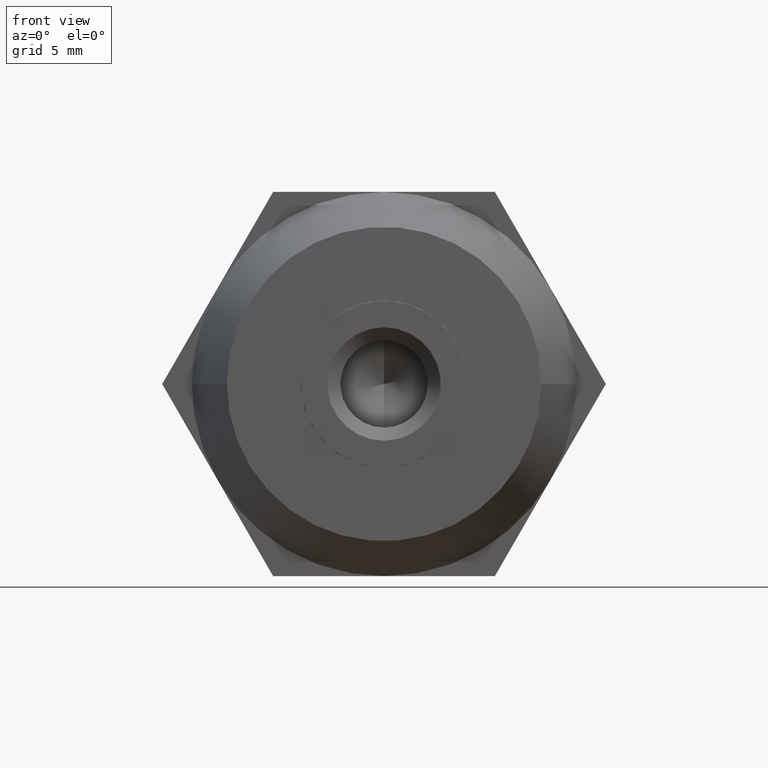
[diagram: clean part render]
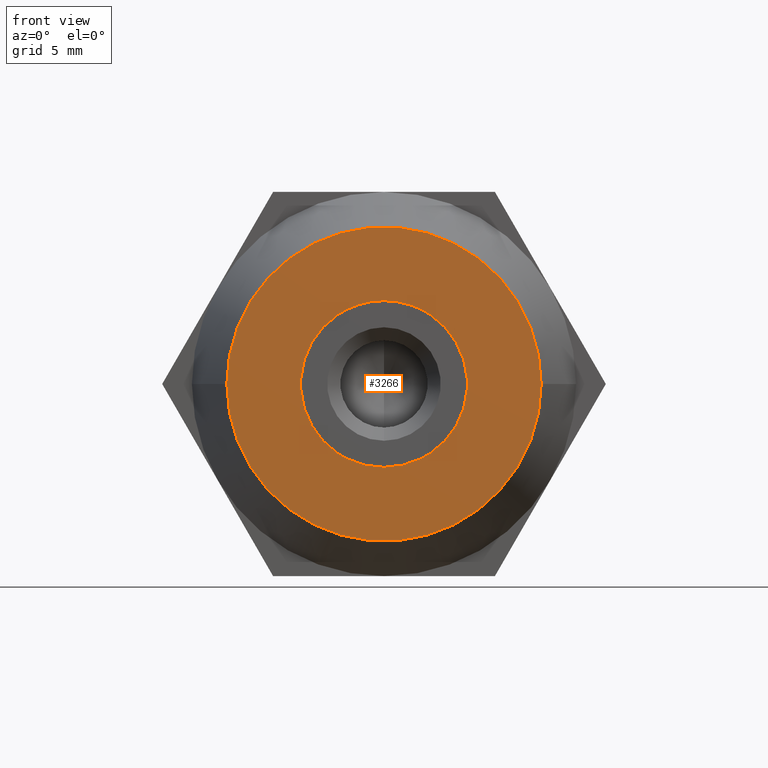
[diagram: same view with one face highlighted and labeled with its STEP entity id]
A machine part, front view. The second image highlights one B-rep face of the part: STEP entity #3266.
In plain terms, the highlighted planar face has unit normal (0, -1, 0).
Its self-contained STEP definition (entity closure, byte-faithful):
#18 = DIRECTION ( 'NONE',  ( 1.261786539621752000E-015, 1.545242846954995000E-031, 1.000000000000000000 ) ) ;
#135 = DIRECTION ( 'NONE',  ( -1.224646799147352000E-016, 1.000000000000000000, -0.0000000000000000000 ) ) ;
#229 = DIRECTION ( 'NONE',  ( -1.224646799147352000E-016, 1.000000000000000000, -0.0000000000000000000 ) ) ;
#272 = ORIENTED_EDGE ( 'NONE', *, *, #2318, .T. ) ;
#285 = DIRECTION ( 'NONE',  ( -0.8660254037844387100, -1.060575238724905700E-016, 0.4999999999999998900 ) ) ;
#337 = CARTESIAN_POINT ( 'NONE',  ( 4.762500000000000200, -12.50000000000000000, 0.3087879531335140400 ) ) ;
#352 = CARTESIAN_POINT ( 'NONE',  ( -4.762500000000000200, -12.50000000000000000, -5.346820461647119800E-015 ) ) ;
#397 = CARTESIAN_POINT ( 'NONE',  ( -4.762500000000000200, -12.50000000000000000, 0.3087879531329060200 ) ) ;
#401 = CIRCLE ( 'NONE', #3774, 4.772500000000000000 ) ;
#413 = DIRECTION ( 'NONE',  ( -1.000000000000000000, -1.927470528863119000E-016, 0.0000000000000000000 ) ) ;
#424 = VERTEX_POINT ( 'NONE', #1768 ) ;
#449 = LINE ( 'NONE', #3721, #2240 ) ;
#465 = ORIENTED_EDGE ( 'NONE', *, *, #550, .T. ) ;
#503 = DIRECTION ( 'NONE',  ( 1.000000000000000000, 0.0000000000000000000, 7.105427357601001900E-015 ) ) ;
#543 = DIRECTION ( 'NONE',  ( -1.224646799147352000E-016, 1.000000000000000000, -0.0000000000000000000 ) ) ;
#550 = EDGE_CURVE ( 'NONE', #2875, #659, #2256, .T. ) ;
#556 = VERTEX_POINT ( 'NONE', #337 ) ;
#571 = CARTESIAN_POINT ( 'NONE',  ( -8.999999999999996400, -12.50000000000000200, 0.0000000000000000000 ) ) ;
#582 = CIRCLE ( 'NONE', #678, 4.772500000000000000 ) ;
#603 = EDGE_LOOP ( 'NONE', ( #2239, #1089 ) ) ;
#659 = VERTEX_POINT ( 'NONE', #1272 ) ;
#662 = DIRECTION ( 'NONE',  ( -1.224646799147352000E-016, 1.000000000000000000, -0.0000000000000000000 ) ) ;
#678 = AXIS2_PLACEMENT_3D ( 'NONE', #3274, #543, #1756 ) ;
#718 = CARTESIAN_POINT ( 'NONE',  ( 2.022226441606597600E-030, -12.50000000000000000, 4.772500000000000000 ) ) ;
#767 = ORIENTED_EDGE ( 'NONE', *, *, #2560, .T. ) ;
#807 = LINE ( 'NONE', #2177, #3607 ) ;
#835 = CARTESIAN_POINT ( 'NONE',  ( -4.368750000000000400, -12.50000000000000000, -8.021560302553369900 ) ) ;
#841 = ORIENTED_EDGE ( 'NONE', *, *, #3730, .T. ) ;
#855 = AXIS2_PLACEMENT_3D ( 'NONE', #2644, #2973, #2782 ) ;
#886 = CARTESIAN_POINT ( 'NONE',  ( -9.131249999999999600, -12.50000000000000000, -0.2273316684934490200 ) ) ;
#906 = FACE_OUTER_BOUND ( 'NONE', #603, .T. ) ;
#969 = DIRECTION ( 'NONE',  ( 0.8660254037844387100, 1.060575238724905700E-016, -0.4999999999999998900 ) ) ;
#992 = VECTOR ( 'NONE', #2966, 1000.000000000000000 ) ;
#1005 = LINE ( 'NONE', #352, #1520 ) ;
#1048 = DIRECTION ( 'NONE',  ( 1.000000000000000000, 0.0000000000000000000, -2.664535259100375700E-015 ) ) ;
#1089 = ORIENTED_EDGE ( 'NONE', *, *, #3745, .F. ) ;
#1098 = LINE ( 'NONE', #3466, #2245 ) ;
#1114 = ORIENTED_EDGE ( 'NONE', *, *, #3353, .T. ) ;
#1125 = AXIS2_PLACEMENT_3D ( 'NONE', #1714, #229, #503 ) ;
#1272 = CARTESIAN_POINT ( 'NONE',  ( -2.648668211795669700, -12.50000000000000000, 3.970052008957005300 ) ) ;
#1329 = CIRCLE ( 'NONE', #1924, 4.772500000000000000 ) ;
#1353 = DIRECTION ( 'NONE',  ( 1.224646799147352000E-016, -1.000000000000000000, 0.0000000000000000000 ) ) ;
#1380 = PLANE ( 'NONE',  #1977 ) ;
#1413 = DIRECTION ( 'NONE',  ( 1.000000000000000000, 1.224646799147352000E-016, 0.0000000000000000000 ) ) ;
#1440 = EDGE_CURVE ( 'NONE', #1962, #2875, #1005, .T. ) ;
#1462 = CARTESIAN_POINT ( 'NONE',  ( 5.844626848930769500E-016, -12.50000000000000000, 0.0000000000000000000 ) ) ;
#1507 = AXIS2_PLACEMENT_3D ( 'NONE', #1956, #135, #1048 ) ;
#1520 = VECTOR ( 'NONE', #18, 1000.000000000000000 ) ;
#1637 = VERTEX_POINT ( 'NONE', #2961 ) ;
#1714 = CARTESIAN_POINT ( 'NONE',  ( 5.844626848930769500E-016, -12.50000000000000000, 0.0000000000000000000 ) ) ;
#1739 = AXIS2_PLACEMENT_3D ( 'NONE', #3484, #2855, #413 ) ;
#1756 = DIRECTION ( 'NONE',  ( 1.000000000000000000, 0.0000000000000000000, -1.776356839400250500E-015 ) ) ;
#1768 = CARTESIAN_POINT ( 'NONE',  ( -2.648668211795784700, -12.50000000000000000, -3.970052008956924400 ) ) ;
#1833 = CARTESIAN_POINT ( 'NONE',  ( 5.844626848930769500E-016, -12.50000000000000000, 0.0000000000000000000 ) ) ;
#1851 = LINE ( 'NONE', #886, #3707 ) ;
#1853 = CARTESIAN_POINT ( 'NONE',  ( 2.113831788204429500, -12.50000000000000000, 4.278839962089825200 ) ) ;
#1866 = VERTEX_POINT ( 'NONE', #3601 ) ;
#1878 = ORIENTED_EDGE ( 'NONE', *, *, #2930, .T. ) ;
#1903 = EDGE_LOOP ( 'NONE', ( #1114, #3538, #3896, #767, #841, #2271, #2566, #3802, #3393, #465, #272, #1878, #2791 ) ) ;
#1924 = AXIS2_PLACEMENT_3D ( 'NONE', #2468, #662, #2788 ) ;
#1926 = VERTEX_POINT ( 'NONE', #3064 ) ;
#1933 = DIRECTION ( 'NONE',  ( 0.0000000000000000000, 0.0000000000000000000, -1.000000000000000000 ) ) ;
#1956 = CARTESIAN_POINT ( 'NONE',  ( 5.844626848930769500E-016, -12.50000000000000000, 0.0000000000000000000 ) ) ;
#1962 = VERTEX_POINT ( 'NONE', #2266 ) ;
#1970 = EDGE_CURVE ( 'NONE', #3880, #556, #2668, .T. ) ;
#1977 = AXIS2_PLACEMENT_3D ( 'NONE', #2893, #1353, #1413 ) ;
#2010 = VERTEX_POINT ( 'NONE', #718 ) ;
#2030 = CARTESIAN_POINT ( 'NONE',  ( 9.000000000000003600, -12.49999999999999800, 1.224646799147353300E-015 ) ) ;
#2177 = CARTESIAN_POINT ( 'NONE',  ( -4.368750000000000400, -12.50000000000000000, 8.021560302553410800 ) ) ;
#2181 = CIRCLE ( 'NONE', #855, 9.000000000000000000 ) ;
#2230 = DIRECTION ( 'NONE',  ( 0.8660254037844383700, 1.060575238724906500E-016, 0.5000000000000003300 ) ) ;
#2239 = ORIENTED_EDGE ( 'NONE', *, *, #2325, .F. ) ;
#2240 = VECTOR ( 'NONE', #1933, 1000.000000000000000 ) ;
#2245 = VECTOR ( 'NONE', #2230, 1000.000000000000100 ) ;
#2256 = CIRCLE ( 'NONE', #3813, 4.772500000000000000 ) ;
#2266 = CARTESIAN_POINT ( 'NONE',  ( -4.762500000000000200, -12.50000000000000000, -0.3087879531328934800 ) ) ;
#2271 = ORIENTED_EDGE ( 'NONE', *, *, #2287, .T. ) ;
#2287 = EDGE_CURVE ( 'NONE', #3459, #1866, #1329, .T. ) ;
#2318 = EDGE_CURVE ( 'NONE', #659, #2598, #1098, .T. ) ;
#2325 = EDGE_CURVE ( 'NONE', #2985, #3493, #3054, .T. ) ;
#2365 = DIRECTION ( 'NONE',  ( -1.224646799147352000E-016, 1.000000000000000000, -0.0000000000000000000 ) ) ;
#2406 = EDGE_CURVE ( 'NONE', #2010, #3404, #3339, .T. ) ;
#2448 = DIRECTION ( 'NONE',  ( -1.224646799147352000E-016, 1.000000000000000000, -0.0000000000000000000 ) ) ;
#2468 = CARTESIAN_POINT ( 'NONE',  ( 5.844626848930769500E-016, -12.50000000000000000, 0.0000000000000000000 ) ) ;
#2560 = EDGE_CURVE ( 'NONE', #1637, #1926, #401, .T. ) ;
#2566 = ORIENTED_EDGE ( 'NONE', *, *, #2593, .T. ) ;
#2593 = EDGE_CURVE ( 'NONE', #1866, #424, #1851, .T. ) ;
#2598 = VERTEX_POINT ( 'NONE', #3878 ) ;
#2644 = CARTESIAN_POINT ( 'NONE',  ( 3.061616997868384600E-015, -12.50000000000000000, 0.0000000000000000000 ) ) ;
#2665 = FACE_BOUND ( 'NONE', #1903, .T. ) ;
#2668 = CIRCLE ( 'NONE', #1507, 4.772500000000000000 ) ;
#2701 = DIRECTION ( 'NONE',  ( 1.000000000000000000, 0.0000000000000000000, 0.0000000000000000000 ) ) ;
#2706 = LINE ( 'NONE', #835, #992 ) ;
#2782 = DIRECTION ( 'NONE',  ( -1.000000000000000000, -1.927470528863119000E-016, 0.0000000000000000000 ) ) ;
#2788 = DIRECTION ( 'NONE',  ( 1.000000000000000000, 0.0000000000000000000, 0.0000000000000000000 ) ) ;
#2791 = ORIENTED_EDGE ( 'NONE', *, *, #2406, .T. ) ;
#2816 = DIRECTION ( 'NONE',  ( -1.224646799147352000E-016, 1.000000000000000000, -0.0000000000000000000 ) ) ;
#2855 = DIRECTION ( 'NONE',  ( -1.224646799147352000E-016, 1.000000000000000000, 0.0000000000000000000 ) ) ;
#2862 = CIRCLE ( 'NONE', #2874, 4.772500000000000000 ) ;
#2874 = AXIS2_PLACEMENT_3D ( 'NONE', #3114, #2816, #3132 ) ;
#2875 = VERTEX_POINT ( 'NONE', #397 ) ;
#2876 = EDGE_CURVE ( 'NONE', #424, #1962, #2862, .T. ) ;
#2893 = CARTESIAN_POINT ( 'NONE',  ( -9.000000000000000000, -12.50000000000000000, 0.0000000000000000000 ) ) ;
#2930 = EDGE_CURVE ( 'NONE', #2598, #2010, #582, .T. ) ;
#2961 = CARTESIAN_POINT ( 'NONE',  ( 4.762500000000000200, -12.50000000000016000, -0.3087879531335430700 ) ) ;
#2966 = DIRECTION ( 'NONE',  ( -0.8660254037844387100, -1.060575238724907700E-016, -0.4999999999999998900 ) ) ;
#2973 = DIRECTION ( 'NONE',  ( -1.224646799147352000E-016, 1.000000000000000000, 0.0000000000000000000 ) ) ;
#2985 = VERTEX_POINT ( 'NONE', #571 ) ;
#3054 = CIRCLE ( 'NONE', #1739, 9.000000000000000000 ) ;
#3064 = CARTESIAN_POINT ( 'NONE',  ( 2.648668211796110200, -12.50000000000000000, -3.970052008956710400 ) ) ;
#3069 = DIRECTION ( 'NONE',  ( 1.000000000000000000, 0.0000000000000000000, 0.0000000000000000000 ) ) ;
#3114 = CARTESIAN_POINT ( 'NONE',  ( 5.844626848930769500E-016, -12.50000000000000000, 0.0000000000000000000 ) ) ;
#3115 = EDGE_CURVE ( 'NONE', #556, #1637, #449, .T. ) ;
#3132 = DIRECTION ( 'NONE',  ( 1.000000000000000000, 0.0000000000000000000, -8.881784197001252300E-016 ) ) ;
#3266 = ADVANCED_FACE ( 'NONE', ( #906, #2665 ), #1380, .T. ) ;
#3274 = CARTESIAN_POINT ( 'NONE',  ( 5.844626848930769500E-016, -12.50000000000000000, 0.0000000000000000000 ) ) ;
#3286 = CARTESIAN_POINT ( 'NONE',  ( 2.648668211795620000, -12.50000000000000000, 3.970052008957034600 ) ) ;
#3339 = CIRCLE ( 'NONE', #1125, 4.772500000000000000 ) ;
#3353 = EDGE_CURVE ( 'NONE', #3404, #3880, #807, .T. ) ;
#3393 = ORIENTED_EDGE ( 'NONE', *, *, #1440, .T. ) ;
#3404 = VERTEX_POINT ( 'NONE', #1853 ) ;
#3459 = VERTEX_POINT ( 'NONE', #3496 ) ;
#3466 = CARTESIAN_POINT ( 'NONE',  ( -9.131249999999999600, -12.50000000000000000, 0.2273316684934445200 ) ) ;
#3484 = CARTESIAN_POINT ( 'NONE',  ( 3.061616997868384600E-015, -12.50000000000000000, 0.0000000000000000000 ) ) ;
#3493 = VERTEX_POINT ( 'NONE', #2030 ) ;
#3496 = CARTESIAN_POINT ( 'NONE',  ( 2.113831788203889900, -12.50000000000000000, -4.278839962090089900 ) ) ;
#3538 = ORIENTED_EDGE ( 'NONE', *, *, #1970, .T. ) ;
#3601 = CARTESIAN_POINT ( 'NONE',  ( -2.113831788204244800, -12.50000000000000000, -4.278839962089914900 ) ) ;
#3607 = VECTOR ( 'NONE', #969, 1000.000000000000000 ) ;
#3707 = VECTOR ( 'NONE', #285, 1000.000000000000000 ) ;
#3721 = CARTESIAN_POINT ( 'NONE',  ( 4.762500000000000200, -12.50000000000000000, 0.0000000000000000000 ) ) ;
#3730 = EDGE_CURVE ( 'NONE', #1926, #3459, #2706, .T. ) ;
#3745 = EDGE_CURVE ( 'NONE', #3493, #2985, #2181, .T. ) ;
#3774 = AXIS2_PLACEMENT_3D ( 'NONE', #1462, #2365, #2701 ) ;
#3802 = ORIENTED_EDGE ( 'NONE', *, *, #2876, .T. ) ;
#3813 = AXIS2_PLACEMENT_3D ( 'NONE', #1833, #2448, #3069 ) ;
#3878 = CARTESIAN_POINT ( 'NONE',  ( -2.113831788204390000, -12.50000000000000000, 4.278839962089850100 ) ) ;
#3880 = VERTEX_POINT ( 'NONE', #3286 ) ;
#3896 = ORIENTED_EDGE ( 'NONE', *, *, #3115, .T. ) ;